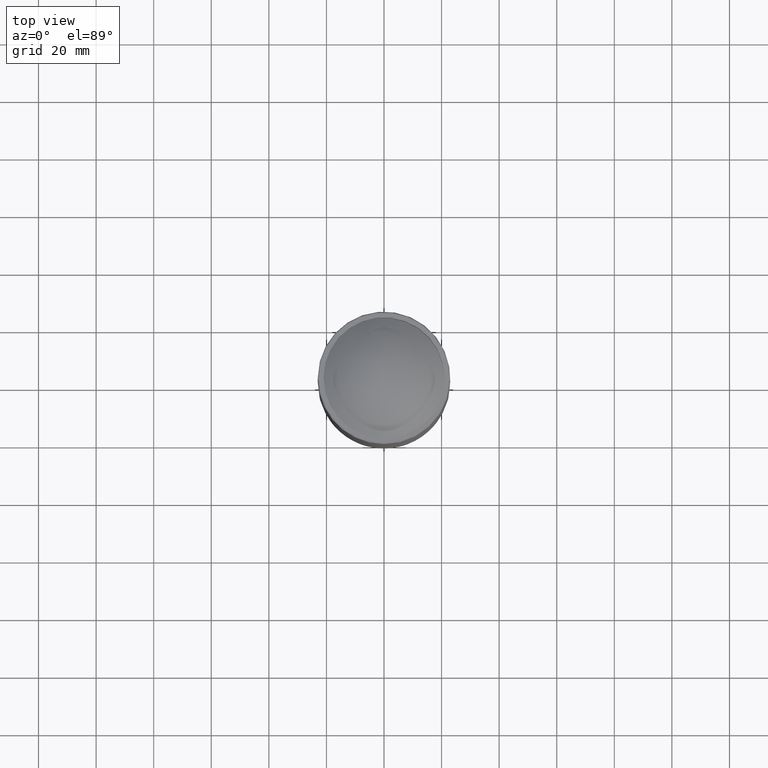
[diagram: clean part render]
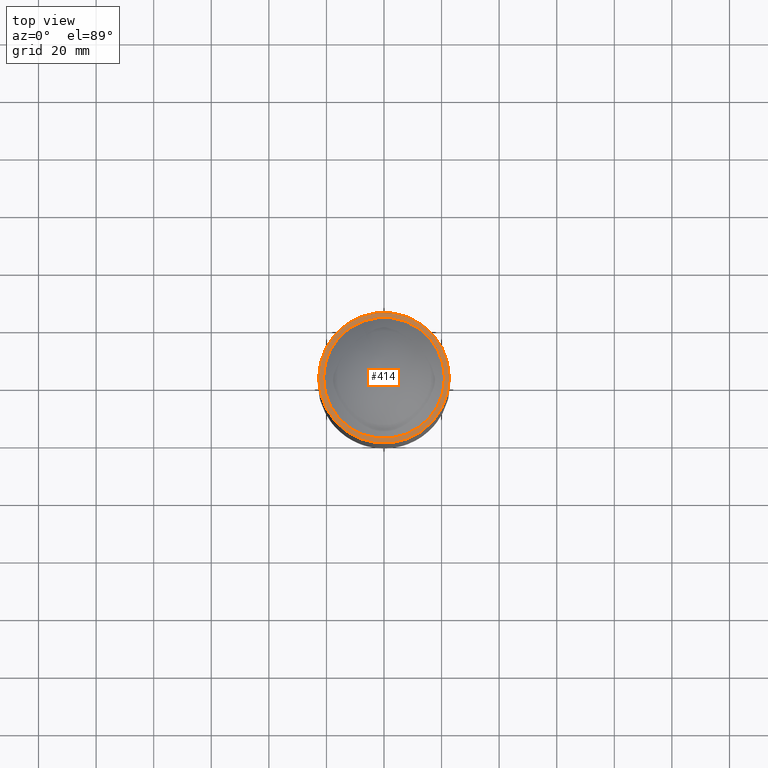
[diagram: same view with one face highlighted and labeled with its STEP entity id]
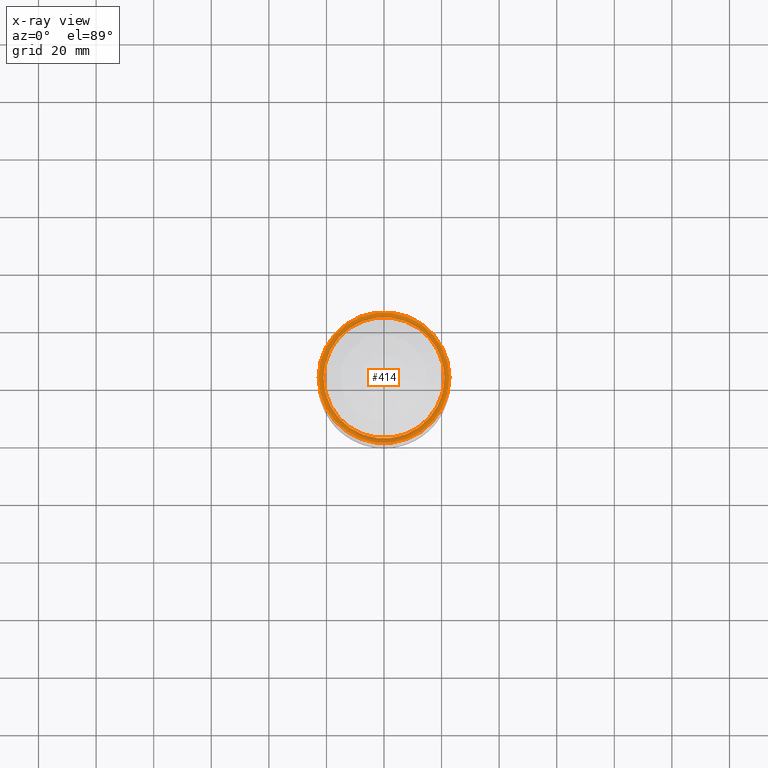
[diagram: x-ray of the same camera — body ghosted, the highlighted face saturated]
A machine part, top view. The second image highlights one B-rep face of the part: STEP entity #414.
The next image is the same camera in x-ray: the body ghosted, the highlighted face saturated — about 0% of this face is hidden behind the body in this view.
In plain terms, the highlighted planar face has unit normal (0, -0, -1).
Its self-contained STEP definition (entity closure, byte-faithful):
#16 = CIRCLE ( 'NONE', #61, 21.00000000000000000 ) ;
#61 = AXIS2_PLACEMENT_3D ( 'NONE', #891, #111, #829 ) ;
#111 = DIRECTION ( 'NONE',  ( 0.000000000000000000, 0.000000000000000000, 1.000000000000000000 ) ) ;
#147 = DIRECTION ( 'NONE',  ( 0.000000000000000000, 1.000000000000000000, -3.079024946026213031E-48 ) ) ;
#153 = FACE_OUTER_BOUND ( 'NONE', #888, .T. ) ;
#176 = DIRECTION ( 'NONE',  ( 0.000000000000000000, 0.000000000000000000, -1.000000000000000000 ) ) ;
#201 = CIRCLE ( 'NONE', #517, 22.70000000000004903 ) ;
#219 = FACE_BOUND ( 'NONE', #636, .T. ) ;
#335 = CARTESIAN_POINT ( 'NONE',  ( 21.00000000000000355, -6.183622186097855047E-15, -420.9999999999999432 ) ) ;
#371 = ORIENTED_EDGE ( 'NONE', *, *, #706, .F. ) ;
#391 = DIRECTION ( 'NONE',  ( -1.000000000000000000, 0.000000000000000000, 0.000000000000000000 ) ) ;
#414 = ADVANCED_FACE ( 'NONE', ( #219, #153 ), #587, .F. ) ;
#433 = CARTESIAN_POINT ( 'NONE',  ( 1.734723475976806306E-15, 21.75000000000004619, -420.9999999999999432 ) ) ;
#460 = CARTESIAN_POINT ( 'NONE',  ( 3.469446951953614189E-15, -6.183622186097855047E-15, -420.9999999999999432 ) ) ;
#462 = ORIENTED_EDGE ( 'NONE', *, *, #682, .F. ) ;
#517 = AXIS2_PLACEMENT_3D ( 'NONE', #460, #176, #391 ) ;
#561 = VERTEX_POINT ( 'NONE', #335 ) ;
#587 = PLANE ( 'NONE',  #759 ) ;
#631 = VERTEX_POINT ( 'NONE', #916 ) ;
#636 = EDGE_LOOP ( 'NONE', ( #462 ) ) ;
#682 = EDGE_CURVE ( 'NONE', #561, #561, #16, .T. ) ;
#706 = EDGE_CURVE ( 'NONE', #631, #631, #201, .T. ) ;
#759 = AXIS2_PLACEMENT_3D ( 'NONE', #433, #928, #147 ) ;
#829 = DIRECTION ( 'NONE',  ( 1.000000000000000000, 0.000000000000000000, 0.000000000000000000 ) ) ;
#888 = EDGE_LOOP ( 'NONE', ( #371 ) ) ;
#891 = CARTESIAN_POINT ( 'NONE',  ( 3.469446951953614189E-15, -6.183622186097855047E-15, -420.9999999999999432 ) ) ;
#916 = CARTESIAN_POINT ( 'NONE',  ( -22.70000000000004547, -6.183622186097855047E-15, -420.9999999999999432 ) ) ;
#928 = DIRECTION ( 'NONE',  ( 0.000000000000000000, -3.079024946026213031E-48, -1.000000000000000000 ) ) ;